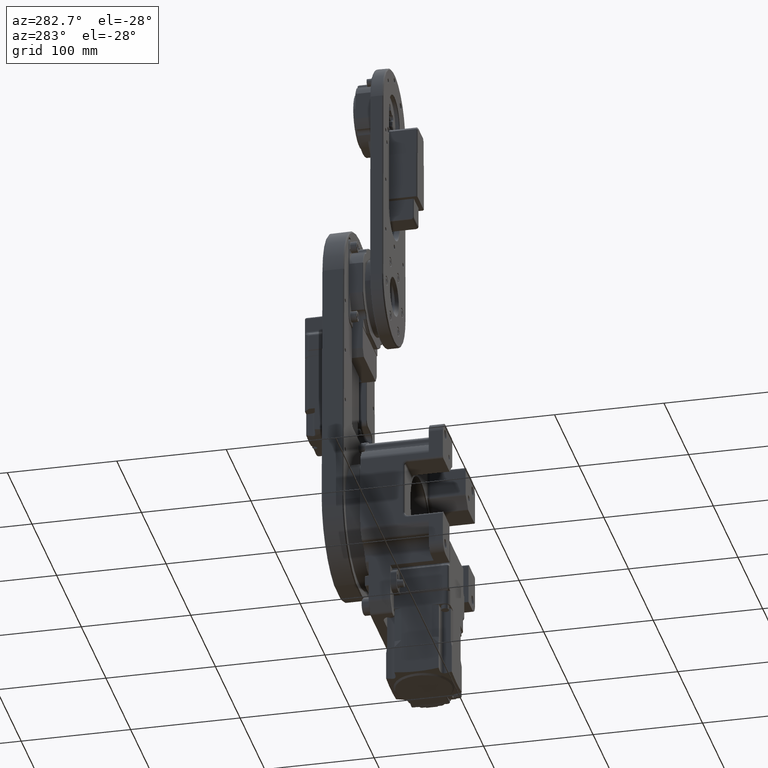
[diagram: clean part render]
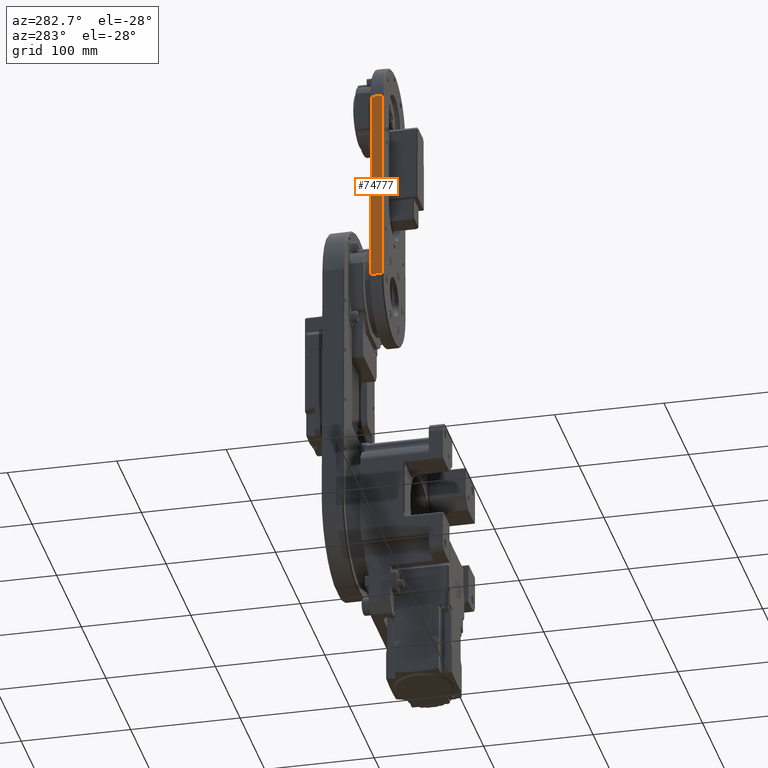
[diagram: same view with one face highlighted and labeled with its STEP entity id]
A machine part, auxiliary view. The second image highlights one B-rep face of the part: STEP entity #74777.
In plain terms, the highlighted planar face has unit normal (1, 0, -0.0056).
Its self-contained STEP definition (entity closure, byte-faithful):
#3082 = CARTESIAN_POINT ( 'NONE',  ( -44.99999999999297273, 59.00000000000071765, 410.0000000000002274 ) ) ;
#5249 = FACE_OUTER_BOUND ( 'NONE', #29324, .T. ) ;
#6786 = ORIENTED_EDGE ( 'NONE', *, *, #55775, .F. ) ;
#12245 = CARTESIAN_POINT ( 'NONE',  ( -45.99999999999295852, 60.00000000000062528, 230.0000000000002558 ) ) ;
#15599 = EDGE_CURVE ( 'NONE', #58694, #29895, #42515, .T. ) ;
#16802 = VECTOR ( 'NONE', #84136, 1000.000000000000000 ) ;
#17038 = VECTOR ( 'NONE', #59490, 1000.000000000000227 ) ;
#17588 = VECTOR ( 'NONE', #50553, 1000.000000000000227 ) ;
#17777 = LINE ( 'NONE', #66647, #17038 ) ;
#21633 = CARTESIAN_POINT ( 'NONE',  ( -45.99999999999296563, 70.00000000000061107, 230.0000000000002558 ) ) ;
#23016 = EDGE_CURVE ( 'NONE', #42816, #43412, #17777, .T. ) ;
#24869 = LINE ( 'NONE', #76038, #25297 ) ;
#25297 = VECTOR ( 'NONE', #76509, 1000.000000000000000 ) ;
#25665 = PLANE ( 'NONE',  #55088 ) ;
#25791 = ORIENTED_EDGE ( 'NONE', *, *, #15599, .T. ) ;
#29324 = EDGE_LOOP ( 'NONE', ( #72093, #25791, #6786, #93175 ) ) ;
#29895 = VERTEX_POINT ( 'NONE', #32368 ) ;
#32368 = CARTESIAN_POINT ( 'NONE',  ( -45.99999999999296563, 70.00000000000066791, 230.0000000000002558 ) ) ;
#33234 = DIRECTION ( 'NONE',  ( 0.9999845682584499462, 3.280789016257829631E-16, -0.005555469823657933903 ) ) ;
#34174 = DIRECTION ( 'NONE',  ( 0.005555469823657933036, 5.792102619708177581E-16, 0.9999845682584498352 ) ) ;
#42515 = LINE ( 'NONE', #21633, #17588 ) ;
#42816 = VERTEX_POINT ( 'NONE', #12245 ) ;
#43412 = VERTEX_POINT ( 'NONE', #69371 ) ;
#50553 = DIRECTION ( 'NONE',  ( -0.005555469823657933036, -5.792102619708177581E-16, -0.9999845682584498352 ) ) ;
#55088 = AXIS2_PLACEMENT_3D ( 'NONE', #83474, #33234, #34174 ) ;
#55775 = EDGE_CURVE ( 'NONE', #42816, #29895, #24869, .T. ) ;
#58694 = VERTEX_POINT ( 'NONE', #60326 ) ;
#59490 = DIRECTION ( 'NONE',  ( 0.005555469823657933036, 5.792102619708177581E-16, 0.9999845682584498352 ) ) ;
#60326 = CARTESIAN_POINT ( 'NONE',  ( -44.99999999999297984, 70.00000000000073896, 410.0000000000002274 ) ) ;
#66647 = CARTESIAN_POINT ( 'NONE',  ( -44.99999999999297273, 60.00000000000071765, 410.0000000000002274 ) ) ;
#68071 = LINE ( 'NONE', #3082, #16802 ) ;
#69371 = CARTESIAN_POINT ( 'NONE',  ( -44.99999999999297273, 60.00000000000071765, 410.0000000000002274 ) ) ;
#70542 = EDGE_CURVE ( 'NONE', #43412, #58694, #68071, .T. ) ;
#72093 = ORIENTED_EDGE ( 'NONE', *, *, #70542, .T. ) ;
#74777 = ADVANCED_FACE ( 'NONE', ( #5249 ), #25665, .F. ) ;
#76038 = CARTESIAN_POINT ( 'NONE',  ( -45.99999999999295852, 59.00000000000061817, 230.0000000000002842 ) ) ;
#76509 = DIRECTION ( 'NONE',  ( -3.312916239288968001E-16, 1.000000000000000000, -5.773786913099911615E-16 ) ) ;
#83474 = CARTESIAN_POINT ( 'NONE',  ( -45.99999999999295852, 59.00000000000061817, 230.0000000000002842 ) ) ;
#84136 = DIRECTION ( 'NONE',  ( -3.312916239288968001E-16, 1.000000000000000000, -5.773786913099911615E-16 ) ) ;
#93175 = ORIENTED_EDGE ( 'NONE', *, *, #23016, .T. ) ;